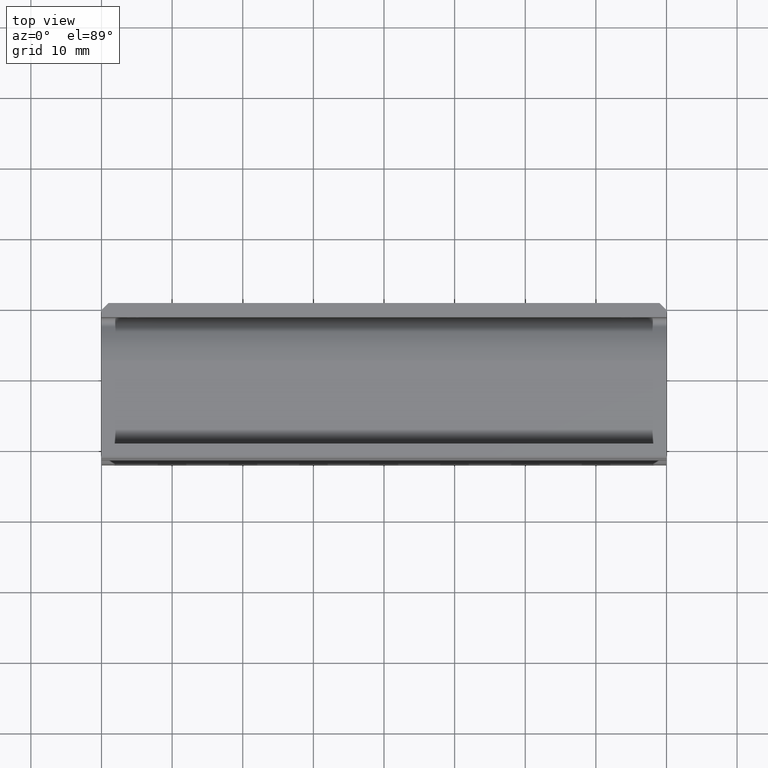
[diagram: clean part render]
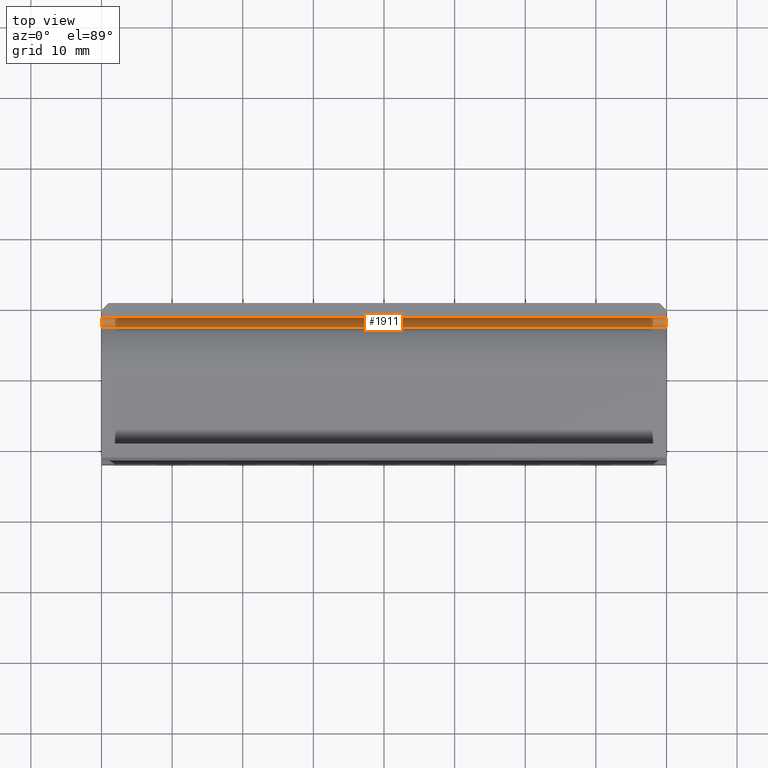
[diagram: same view with one face highlighted and labeled with its STEP entity id]
A machine part, top view. The second image highlights one B-rep face of the part: STEP entity #1911.
In plain terms, the highlighted face is a freeform B-spline surface patch.
Its self-contained STEP definition (entity closure, byte-faithful):
#965=CARTESIAN_POINT('',(40.0,18.0,51.099294999999898));
#966=VERTEX_POINT('',#965);
#972=CARTESIAN_POINT('',(40.0,16.727272722990399,50.453904481343798));
#973=VERTEX_POINT('',#972);
#974=CARTESIAN_POINT('',(40.0,16.727272722990438,50.453904481343848));
#975=CARTESIAN_POINT('',(40.0,17.123627222252377,50.163587878061925));
#976=CARTESIAN_POINT('',(40.0,17.561813611126190,50.385788930786873));
#977=CARTESIAN_POINT('',(40.0,18.000000000000004,50.607989983511835));
#978=CARTESIAN_POINT('',(40.0,18.0,51.099294999999898));
#986=(BOUNDED_CURVE()B_SPLINE_CURVE(2,(#974,#975,#976,#977,#978),.UNSPECIFIED.,.F.,.U.)B_SPLINE_CURVE_WITH_KNOTS((3,2,3),(0.0,0.500000000000000,1.0),.UNSPECIFIED.)CURVE()GEOMETRIC_REPRESENTATION_ITEM()RATIONAL_B_SPLINE_CURVE((1.0,0.852134676535270,1.0,0.852134676535270,1.0))REPRESENTATION_ITEM(''));
#987=EDGE_CURVE('',#973,#966,#986,.T.);
#1741=CARTESIAN_POINT('',(-40.0,16.727272722990399,50.453904481343798));
#1742=VERTEX_POINT('',#1741);
#1756=CARTESIAN_POINT('',(-40.0,18.0,51.099294999999898));
#1757=VERTEX_POINT('',#1756);
#1758=CARTESIAN_POINT('',(-40.0,16.727272722990438,50.453904481343848));
#1759=CARTESIAN_POINT('',(-40.0,17.123627222252377,50.163587878061925));
#1760=CARTESIAN_POINT('',(-40.0,17.561813611126190,50.385788930786873));
#1761=CARTESIAN_POINT('',(-40.0,18.000000000000004,50.607989983511835));
#1762=CARTESIAN_POINT('',(-40.0,18.0,51.099294999999898));
#1770=(BOUNDED_CURVE()B_SPLINE_CURVE(2,(#1758,#1759,#1760,#1761,#1762),.UNSPECIFIED.,.F.,.U.)B_SPLINE_CURVE_WITH_KNOTS((3,2,3),(0.0,0.500000000000000,1.0),.UNSPECIFIED.)CURVE()GEOMETRIC_REPRESENTATION_ITEM()RATIONAL_B_SPLINE_CURVE((1.0,0.852134676535270,1.0,0.852134676535270,1.0))REPRESENTATION_ITEM(''));
#1771=EDGE_CURVE('',#1742,#1757,#1770,.T.);
#1877=CARTESIAN_POINT('',(-40.0,16.727272722990399,50.453904481343798));
#1878=CARTESIAN_POINT('',(40.0,16.727272722990399,50.453904481343798));
#1879=QUASI_UNIFORM_CURVE('',1,(#1877,#1878),.UNSPECIFIED.,.F.,.U.);
#1880=EDGE_CURVE('',#1742,#973,#1879,.T.);
#1887=CARTESIAN_POINT('',(-42.000000000000007,17.999725859980440,51.120236558646198));
#1888=CARTESIAN_POINT('',(42.049999999999997,17.999725859980440,51.120236558646198));
#1889=CARTESIAN_POINT('',(-42.000000000000021,18.045677916488177,49.365398319085379));
#1890=CARTESIAN_POINT('',(42.050000000000018,18.045677916488177,49.365398319085379));
#1891=CARTESIAN_POINT('',(-42.000000000000007,16.691137423777779,50.481995333289717));
#1892=CARTESIAN_POINT('',(42.049999999999997,16.691137423777779,50.481995333289717));
#1900=(BOUNDED_SURFACE()B_SPLINE_SURFACE(1,2,((#1887,#1889,#1891),(#1888,#1890,#1892)),.UNSPECIFIED.,.F.,.F.,.U.)B_SPLINE_SURFACE_WITH_KNOTS((2,2),(3,3),(0.0,84.050000000000026),(0.0,2.058309164845945),.UNSPECIFIED.)GEOMETRIC_REPRESENTATION_ITEM()RATIONAL_B_SPLINE_SURFACE(((1.0,0.414693242656239,1.0),(1.0,0.414693242656239,1.0)))REPRESENTATION_ITEM('')SURFACE());
#1901=ORIENTED_EDGE('',*,*,#987,.T.);
#1902=CARTESIAN_POINT('',(-40.0,18.0,51.099294999999898));
#1903=CARTESIAN_POINT('',(40.0,18.0,51.099294999999898));
#1904=QUASI_UNIFORM_CURVE('',1,(#1902,#1903),.UNSPECIFIED.,.F.,.U.);
#1905=EDGE_CURVE('',#1757,#966,#1904,.T.);
#1906=ORIENTED_EDGE('',*,*,#1905,.F.);
#1907=ORIENTED_EDGE('',*,*,#1771,.F.);
#1908=ORIENTED_EDGE('',*,*,#1880,.T.);
#1909=EDGE_LOOP('',(#1901,#1906,#1907,#1908));
#1910=FACE_OUTER_BOUND('',#1909,.T.);
#1911=ADVANCED_FACE('',(#1910),#1900,.F.);